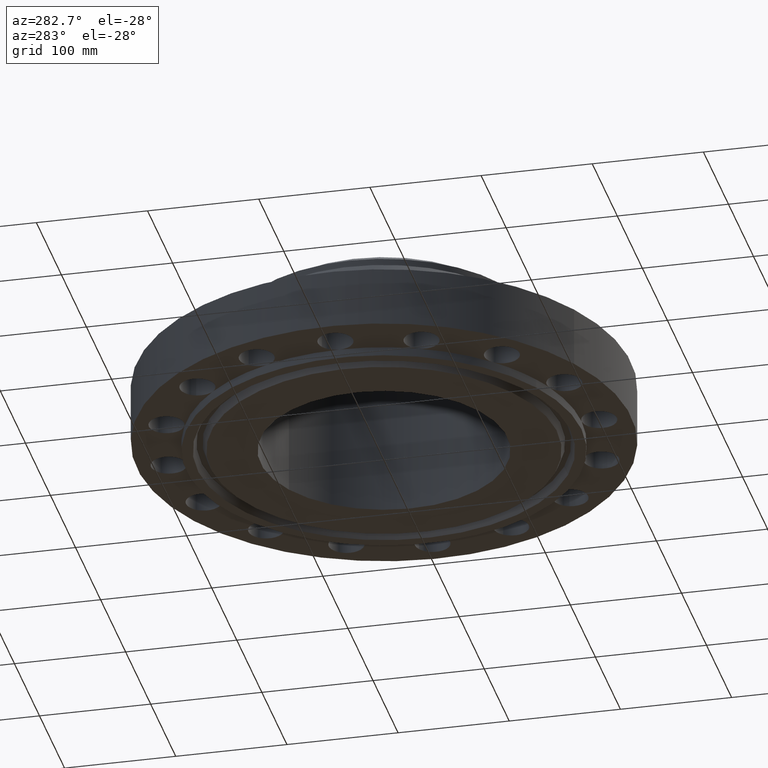
[diagram: clean part render]
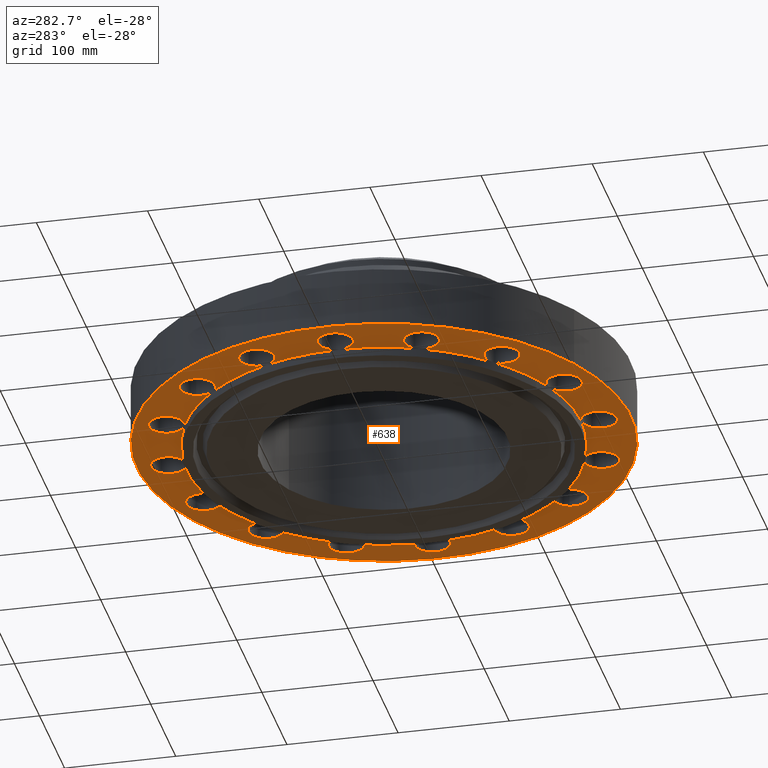
[diagram: same view with one face highlighted and labeled with its STEP entity id]
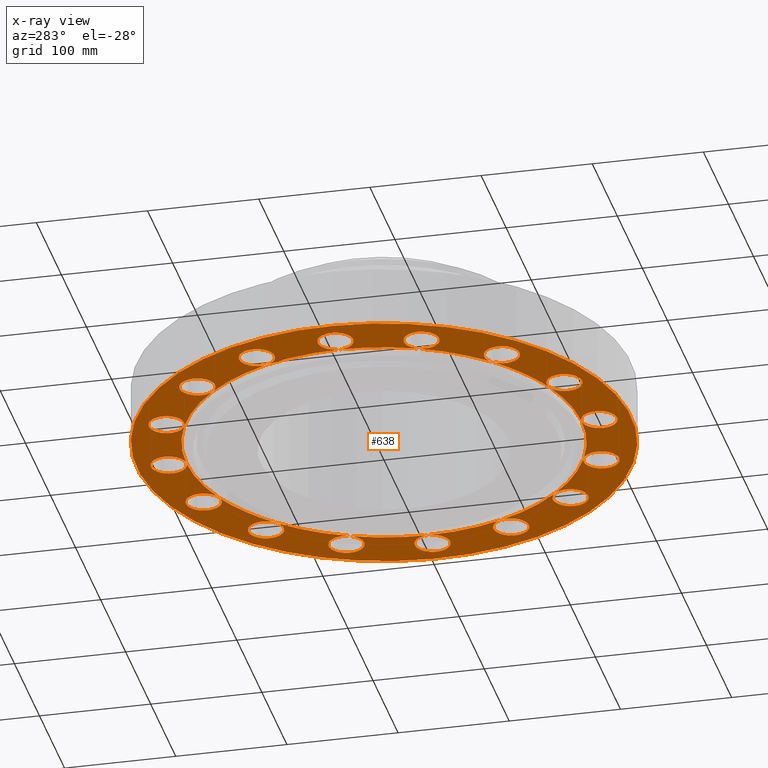
[diagram: x-ray of the same camera — body ghosted, the highlighted face saturated]
A machine part, auxiliary view. The second image highlights one B-rep face of the part: STEP entity #638.
The next image is the same camera in x-ray: the body ghosted, the highlighted face saturated — about 0% of this face is hidden behind the body in this view.
In plain terms, the highlighted planar face has unit normal (0, 0, -1).
Its self-contained STEP definition (entity closure, byte-faithful):
#51=AXIS2_PLACEMENT_3D('Circle Axis2P3D',#49,#50,$) ;
#90=AXIS2_PLACEMENT_3D('Circle Axis2P3D',#88,#89,$) ;
#141=AXIS2_PLACEMENT_3D('Plane Axis2P3D',#138,#139,#140) ;
#145=AXIS2_PLACEMENT_3D('Circle Axis2P3D',#143,#144,$) ;
#154=AXIS2_PLACEMENT_3D('Circle Axis2P3D',#152,#153,$) ;
#163=AXIS2_PLACEMENT_3D('Circle Axis2P3D',#161,#162,$) ;
#172=AXIS2_PLACEMENT_3D('Circle Axis2P3D',#170,#171,$) ;
#179=AXIS2_PLACEMENT_3D('Circle Axis2P3D',#177,#178,$) ;
#184=AXIS2_PLACEMENT_3D('Circle Axis2P3D',#182,#183,$) ;
#191=AXIS2_PLACEMENT_3D('Circle Axis2P3D',#189,#190,$) ;
#198=AXIS2_PLACEMENT_3D('Circle Axis2P3D',#196,#197,$) ;
#205=AXIS2_PLACEMENT_3D('Circle Axis2P3D',#203,#204,$) ;
#212=AXIS2_PLACEMENT_3D('Circle Axis2P3D',#210,#211,$) ;
#217=AXIS2_PLACEMENT_3D('Circle Axis2P3D',#215,#216,$) ;
#222=AXIS2_PLACEMENT_3D('Circle Axis2P3D',#220,#221,$) ;
#229=AXIS2_PLACEMENT_3D('Circle Axis2P3D',#227,#228,$) ;
#236=AXIS2_PLACEMENT_3D('Circle Axis2P3D',#234,#235,$) ;
#243=AXIS2_PLACEMENT_3D('Circle Axis2P3D',#241,#242,$) ;
#248=AXIS2_PLACEMENT_3D('Circle Axis2P3D',#246,#247,$) ;
#255=AXIS2_PLACEMENT_3D('Circle Axis2P3D',#253,#254,$) ;
#262=AXIS2_PLACEMENT_3D('Circle Axis2P3D',#260,#261,$) ;
#269=AXIS2_PLACEMENT_3D('Circle Axis2P3D',#267,#268,$) ;
#274=AXIS2_PLACEMENT_3D('Circle Axis2P3D',#272,#273,$) ;
#281=AXIS2_PLACEMENT_3D('Circle Axis2P3D',#279,#280,$) ;
#288=AXIS2_PLACEMENT_3D('Circle Axis2P3D',#286,#287,$) ;
#295=AXIS2_PLACEMENT_3D('Circle Axis2P3D',#293,#294,$) ;
#300=AXIS2_PLACEMENT_3D('Circle Axis2P3D',#298,#299,$) ;
#307=AXIS2_PLACEMENT_3D('Circle Axis2P3D',#305,#306,$) ;
#314=AXIS2_PLACEMENT_3D('Circle Axis2P3D',#312,#313,$) ;
#321=AXIS2_PLACEMENT_3D('Circle Axis2P3D',#319,#320,$) ;
#326=AXIS2_PLACEMENT_3D('Circle Axis2P3D',#324,#325,$) ;
#333=AXIS2_PLACEMENT_3D('Circle Axis2P3D',#331,#332,$) ;
#340=AXIS2_PLACEMENT_3D('Circle Axis2P3D',#338,#339,$) ;
#347=AXIS2_PLACEMENT_3D('Circle Axis2P3D',#345,#346,$) ;
#352=AXIS2_PLACEMENT_3D('Circle Axis2P3D',#350,#351,$) ;
#359=AXIS2_PLACEMENT_3D('Circle Axis2P3D',#357,#358,$) ;
#366=AXIS2_PLACEMENT_3D('Circle Axis2P3D',#364,#365,$) ;
#373=AXIS2_PLACEMENT_3D('Circle Axis2P3D',#371,#372,$) ;
#378=AXIS2_PLACEMENT_3D('Circle Axis2P3D',#376,#377,$) ;
#385=AXIS2_PLACEMENT_3D('Circle Axis2P3D',#383,#384,$) ;
#392=AXIS2_PLACEMENT_3D('Circle Axis2P3D',#390,#391,$) ;
#399=AXIS2_PLACEMENT_3D('Circle Axis2P3D',#397,#398,$) ;
#406=AXIS2_PLACEMENT_3D('Circle Axis2P3D',#404,#405,$) ;
#411=AXIS2_PLACEMENT_3D('Circle Axis2P3D',#409,#410,$) ;
#418=AXIS2_PLACEMENT_3D('Circle Axis2P3D',#416,#417,$) ;
#425=AXIS2_PLACEMENT_3D('Circle Axis2P3D',#423,#424,$) ;
#432=AXIS2_PLACEMENT_3D('Circle Axis2P3D',#430,#431,$) ;
#437=AXIS2_PLACEMENT_3D('Circle Axis2P3D',#435,#436,$) ;
#444=AXIS2_PLACEMENT_3D('Circle Axis2P3D',#442,#443,$) ;
#451=AXIS2_PLACEMENT_3D('Circle Axis2P3D',#449,#450,$) ;
#458=AXIS2_PLACEMENT_3D('Circle Axis2P3D',#456,#457,$) ;
#463=AXIS2_PLACEMENT_3D('Circle Axis2P3D',#461,#462,$) ;
#470=AXIS2_PLACEMENT_3D('Circle Axis2P3D',#468,#469,$) ;
#477=AXIS2_PLACEMENT_3D('Circle Axis2P3D',#475,#476,$) ;
#484=AXIS2_PLACEMENT_3D('Circle Axis2P3D',#482,#483,$) ;
#489=AXIS2_PLACEMENT_3D('Circle Axis2P3D',#487,#488,$) ;
#496=AXIS2_PLACEMENT_3D('Circle Axis2P3D',#494,#495,$) ;
#503=AXIS2_PLACEMENT_3D('Circle Axis2P3D',#501,#502,$) ;
#510=AXIS2_PLACEMENT_3D('Circle Axis2P3D',#508,#509,$) ;
#515=AXIS2_PLACEMENT_3D('Circle Axis2P3D',#513,#514,$) ;
#522=AXIS2_PLACEMENT_3D('Circle Axis2P3D',#520,#521,$) ;
#529=AXIS2_PLACEMENT_3D('Circle Axis2P3D',#527,#528,$) ;
#536=AXIS2_PLACEMENT_3D('Circle Axis2P3D',#534,#535,$) ;
#541=AXIS2_PLACEMENT_3D('Circle Axis2P3D',#539,#540,$) ;
#548=AXIS2_PLACEMENT_3D('Circle Axis2P3D',#546,#547,$) ;
#555=AXIS2_PLACEMENT_3D('Circle Axis2P3D',#553,#554,$) ;
#562=AXIS2_PLACEMENT_3D('Circle Axis2P3D',#560,#561,$) ;
#567=AXIS2_PLACEMENT_3D('Circle Axis2P3D',#565,#566,$) ;
#44=CARTESIAN_POINT('Vertex',(-0.548489101184,7.92464096166,1.6921547278E-011)) ;
#49=CARTESIAN_POINT('Axis2P3D Location',(0.,7.62500000003,1.6921547278E-011)) ;
#53=CARTESIAN_POINT('Vertex',(0.548489101184,7.3253590384,1.6921547278E-011)) ;
#88=CARTESIAN_POINT('Axis2P3D Location',(0.,7.62500000003,1.6921547278E-011)) ;
#92=CARTESIAN_POINT('Vertex',(-1.71542746534E-016,7.00000000003,0.)) ;
#96=CARTESIAN_POINT('Control Point',(-2.86734765415E-015,7.00000000003,1.6921547278E-011)) ;
#97=CARTESIAN_POINT('Control Point',(-0.129424770425,7.00000000003,1.52293645761E-011)) ;
#98=CARTESIAN_POINT('Control Point',(-0.258849540851,7.03350154243,1.35371818742E-011)) ;
#99=CARTESIAN_POINT('Control Point',(-0.376666681218,7.10059965544,1.18448593016E-011)) ;
#100=CARTESIAN_POINT('Control Point',(-0.566354498518,7.28904336093,8.46049389777E-012)) ;
#101=CARTESIAN_POINT('Control Point',(-0.640788224379,7.5458548066,5.07612849392E-012)) ;
#102=CARTESIAN_POINT('Control Point',(-0.643187812318,7.68141762345,3.38380592138E-012)) ;
#103=CARTESIAN_POINT('Control Point',(-0.610538641454,7.81106004006,1.69162321945E-012)) ;
#104=CARTESIAN_POINT('Control Point',(-0.548489101184,7.92464096166,-5.59482469102E-016)) ;
#138=CARTESIAN_POINT('Axis2P3D Location',(0.,7.00000000003,0.)) ;
#143=CARTESIAN_POINT('Axis2P3D Location',(-1.1189649382E-015,6.68022068108E-013,0.)) ;
#147=CARTESIAN_POINT('Vertex',(-4.1949734628,-7.67884741657,8.39223703654E-016)) ;
#149=CARTESIAN_POINT('Vertex',(4.1949734628,7.67884741657,-3.14177380524E-012)) ;
#152=CARTESIAN_POINT('Axis2P3D Location',(1.1189649382E-015,6.68022068108E-013,0.)) ;
#161=CARTESIAN_POINT('Axis2P3D Location',(5.39168920646,5.39168920634,0.)) ;
#165=CARTESIAN_POINT('Vertex',(5.56765141354,4.79197068785,0.)) ;
#167=CARTESIAN_POINT('Vertex',(4.94974746833,4.94974746833,-3.14177380524E-012)) ;
#170=CARTESIAN_POINT('Axis2P3D Location',(5.39168920658,5.39168920658,0.)) ;
#174=CARTESIAN_POINT('Vertex',(5.21572699961,5.9914077253,0.)) ;
#177=CARTESIAN_POINT('Axis2P3D Location',(5.3916892065,5.39168920657,0.)) ;
#182=CARTESIAN_POINT('Axis2P3D Location',(5.2014301877E-010,8.78804850413E-010,0.)) ;
#186=CARTESIAN_POINT('Vertex',(3.35597877024,6.14307793326,-3.14177380524E-012)) ;
#189=CARTESIAN_POINT('Axis2P3D Location',(-3.58732997813E-009,-7.85138197676E-009,0.)) ;
#193=CARTESIAN_POINT('Vertex',(2.67878402657,6.4671567276,-3.14177380524E-012)) ;
#196=CARTESIAN_POINT('Axis2P3D Location',(2.91796117176,7.04458143555,0.)) ;
#200=CARTESIAN_POINT('Vertex',(3.31003139448,6.55785159201,0.)) ;
#203=CARTESIAN_POINT('Axis2P3D Location',(2.91796117181,7.04458143543,0.)) ;
#207=CARTESIAN_POINT('Vertex',(2.52589094907,7.5313112788,0.)) ;
#210=CARTESIAN_POINT('Axis2P3D Location',(2.91796117184,7.04458143541,0.)) ;
#215=CARTESIAN_POINT('Axis2P3D Location',(2.34735205901E-010,1.32776491464E-009,0.)) ;
#220=CARTESIAN_POINT('Axis2P3D Location',(-2.34733947066E-010,1.32775820085E-009,0.)) ;
#224=CARTESIAN_POINT('Vertex',(-2.67878402657,6.4671567276,-3.14177380524E-012)) ;
#227=CARTESIAN_POINT('Axis2P3D Location',(-2.91796117172,7.04458143533,0.)) ;
#231=CARTESIAN_POINT('Vertex',(-2.29655568576,6.97764697573,0.)) ;
#234=CARTESIAN_POINT('Axis2P3D Location',(-2.91796117181,7.04458143544,0.)) ;
#238=CARTESIAN_POINT('Vertex',(-3.53936665787,7.11151589515,0.)) ;
#241=CARTESIAN_POINT('Axis2P3D Location',(-2.91796117177,7.04458143547,0.)) ;
#246=CARTESIAN_POINT('Axis2P3D Location',(-1.09747130019E-009,1.71139644888E-009,0.)) ;
#250=CARTESIAN_POINT('Vertex',(-4.94974746833,4.94974746833,-3.14177380524E-012)) ;
#253=CARTESIAN_POINT('Axis2P3D Location',(-5.39168920634,5.39168920646,0.)) ;
#257=CARTESIAN_POINT('Vertex',(-4.79197068785,5.56765141354,0.)) ;
#260=CARTESIAN_POINT('Axis2P3D Location',(-5.39168920658,5.39168920658,0.)) ;
#264=CARTESIAN_POINT('Vertex',(-5.9914077253,5.21572699961,0.)) ;
#267=CARTESIAN_POINT('Axis2P3D Location',(-5.39168920656,5.3916892065,0.)) ;
#272=CARTESIAN_POINT('Axis2P3D Location',(-1.71072171302E-009,1.09813540588E-009,0.)) ;
#276=CARTESIAN_POINT('Vertex',(-6.4671567276,2.67878402657,-3.14177380524E-012)) ;
#279=CARTESIAN_POINT('Axis2P3D Location',(-7.04458143555,2.91796117176,0.)) ;
#283=CARTESIAN_POINT('Vertex',(-6.55785159201,3.31003139448,0.)) ;
#286=CARTESIAN_POINT('Axis2P3D Location',(-7.04458143543,2.91796117181,0.)) ;
#290=CARTESIAN_POINT('Vertex',(-7.5313112788,2.52589094907,0.)) ;
#293=CARTESIAN_POINT('Axis2P3D Location',(-7.04458143541,2.91796117184,0.)) ;
#298=CARTESIAN_POINT('Axis2P3D Location',(-1.32709689257E-009,2.3540336784E-010,0.)) ;
#302=CARTESIAN_POINT('Vertex',(-7.00000000003,-2.23792987641E-014,-3.14177380524E-012)) ;
#305=CARTESIAN_POINT('Axis2P3D Location',(-7.62499999973,1.82601650336E-010,0.)) ;
#309=CARTESIAN_POINT('Vertex',(-7.32535903841,0.548489101188,0.)) ;
#312=CARTESIAN_POINT('Axis2P3D Location',(-7.62500000003,6.68022068108E-013,0.)) ;
#316=CARTESIAN_POINT('Vertex',(-7.92464096165,-0.548489101186,0.)) ;
#319=CARTESIAN_POINT('Axis2P3D Location',(-7.62499999998,-8.67063551316E-011,0.)) ;
#324=CARTESIAN_POINT('Axis2P3D Location',(-1.32709017878E-009,-2.34066204739E-010,0.)) ;
#328=CARTESIAN_POINT('Vertex',(-6.4671567276,-2.67878402657,-3.14177380524E-012)) ;
#331=CARTESIAN_POINT('Axis2P3D Location',(-7.04458143533,-2.91796117172,0.)) ;
#335=CARTESIAN_POINT('Vertex',(-6.97764697573,-2.29655568576,0.)) ;
#338=CARTESIAN_POINT('Axis2P3D Location',(-7.04458143544,-2.91796117181,0.)) ;
#342=CARTESIAN_POINT('Vertex',(-7.11151589515,-3.53936665787,0.)) ;
#345=CARTESIAN_POINT('Axis2P3D Location',(-7.04458143547,-2.91796117177,0.)) ;
#350=CARTESIAN_POINT('Axis2P3D Location',(-1.71072842681E-009,-1.0968038376E-009,0.)) ;
#354=CARTESIAN_POINT('Vertex',(-4.94974746831,-4.94974746831,0.)) ;
#357=CARTESIAN_POINT('Axis2P3D Location',(-5.39168920646,-5.39168920634,0.)) ;
#361=CARTESIAN_POINT('Vertex',(-5.56765141354,-4.79197068785,0.)) ;
#364=CARTESIAN_POINT('Axis2P3D Location',(-5.39168920658,-5.39168920658,0.)) ;
#368=CARTESIAN_POINT('Vertex',(-5.21572699961,-5.9914077253,0.)) ;
#371=CARTESIAN_POINT('Axis2P3D Location',(-5.3916892065,-5.39168920656,0.)) ;
#376=CARTESIAN_POINT('Axis2P3D Location',(-5.2014301877E-010,-8.77468806277E-010,0.)) ;
#380=CARTESIAN_POINT('Vertex',(-3.35597877025,-6.14307793326,-3.14177380524E-012)) ;
#383=CARTESIAN_POINT('Axis2P3D Location',(3.58732997813E-009,7.8527180209E-009,0.)) ;
#387=CARTESIAN_POINT('Vertex',(-2.67878402657,-6.4671567276,-3.14177380524E-012)) ;
#390=CARTESIAN_POINT('Axis2P3D Location',(-2.91796117176,-7.04458143555,0.)) ;
#394=CARTESIAN_POINT('Vertex',(-3.31003139448,-6.557851592,0.)) ;
#397=CARTESIAN_POINT('Axis2P3D Location',(-2.91796117181,-7.04458143543,0.)) ;
#401=CARTESIAN_POINT('Vertex',(-2.52589094907,-7.5313112788,0.)) ;
#404=CARTESIAN_POINT('Axis2P3D Location',(-2.91796117184,-7.04458143541,0.)) ;
#409=CARTESIAN_POINT('Axis2P3D Location',(-2.34735205901E-010,-1.3264288705E-009,0.)) ;
#413=CARTESIAN_POINT('Vertex',(2.01413688877E-014,-7.00000000003,-3.14177380524E-012)) ;
#416=CARTESIAN_POINT('Axis2P3D Location',(4.80151351749E-011,-7.62500000011,0.)) ;
#420=CARTESIAN_POINT('Vertex',(-0.548489101187,-7.32535903841,0.)) ;
#423=CARTESIAN_POINT('Axis2P3D Location',(-1.74838271595E-017,-7.62500000003,0.)) ;
#427=CARTESIAN_POINT('Vertex',(0.548489101187,-7.92464096165,0.)) ;
#430=CARTESIAN_POINT('Axis2P3D Location',(8.73747618439E-011,-7.62499999998,0.)) ;
#435=CARTESIAN_POINT('Axis2P3D Location',(2.34733947066E-010,-1.32642215671E-009,0.)) ;
#439=CARTESIAN_POINT('Vertex',(2.67878402657,-6.4671567276,-3.14177380524E-012)) ;
#442=CARTESIAN_POINT('Axis2P3D Location',(2.91796117172,-7.04458143533,0.)) ;
#446=CARTESIAN_POINT('Vertex',(2.29655568576,-6.97764697573,0.)) ;
#449=CARTESIAN_POINT('Axis2P3D Location',(2.91796117181,-7.04458143544,0.)) ;
#453=CARTESIAN_POINT('Vertex',(3.53936665787,-7.11151589515,0.)) ;
#456=CARTESIAN_POINT('Axis2P3D Location',(2.91796117177,-7.04458143546,0.)) ;
#461=CARTESIAN_POINT('Axis2P3D Location',(1.09747130019E-009,-1.71006040474E-009,0.)) ;
#465=CARTESIAN_POINT('Vertex',(4.94974746833,-4.94974746833,-3.14177380524E-012)) ;
#468=CARTESIAN_POINT('Axis2P3D Location',(5.39168920634,-5.39168920646,0.)) ;
#472=CARTESIAN_POINT('Vertex',(4.79197068785,-5.56765141354,0.)) ;
#475=CARTESIAN_POINT('Axis2P3D Location',(5.39168920658,-5.39168920658,0.)) ;
#479=CARTESIAN_POINT('Vertex',(5.9914077253,-5.21572699961,0.)) ;
#482=CARTESIAN_POINT('Axis2P3D Location',(5.39168920656,-5.3916892065,0.)) ;
#487=CARTESIAN_POINT('Axis2P3D Location',(1.71072171302E-009,-1.09679936174E-009,0.)) ;
#491=CARTESIAN_POINT('Vertex',(6.4671567276,-2.67878402657,-3.14177380524E-012)) ;
#494=CARTESIAN_POINT('Axis2P3D Location',(7.04458143555,-2.91796117176,0.)) ;
#498=CARTESIAN_POINT('Vertex',(6.55785159201,-3.31003139448,0.)) ;
#501=CARTESIAN_POINT('Axis2P3D Location',(7.04458143543,-2.91796117181,0.)) ;
#505=CARTESIAN_POINT('Vertex',(7.5313112788,-2.52589094907,0.)) ;
#508=CARTESIAN_POINT('Axis2P3D Location',(7.04458143541,-2.91796117184,0.)) ;
#513=CARTESIAN_POINT('Axis2P3D Location',(1.32709689257E-009,-2.34067323704E-010,0.)) ;
#517=CARTESIAN_POINT('Vertex',(7.00000000003,1.95818864186E-014,-3.14177380524E-012)) ;
#520=CARTESIAN_POINT('Axis2P3D Location',(7.62499999973,-1.812656062E-010,0.)) ;
#524=CARTESIAN_POINT('Vertex',(7.32535903841,-0.548489101186,0.)) ;
#527=CARTESIAN_POINT('Axis2P3D Location',(7.62500000003,6.68022068108E-013,0.)) ;
#531=CARTESIAN_POINT('Vertex',(7.92464096165,0.548489101188,0.)) ;
#534=CARTESIAN_POINT('Axis2P3D Location',(7.62499999998,8.80423992678E-011,0.)) ;
#539=CARTESIAN_POINT('Axis2P3D Location',(1.32709017878E-009,2.35402248875E-010,0.)) ;
#543=CARTESIAN_POINT('Vertex',(6.4671567276,2.67878402657,-3.14177380524E-012)) ;
#546=CARTESIAN_POINT('Axis2P3D Location',(7.04458143533,2.91796117172,0.)) ;
#550=CARTESIAN_POINT('Vertex',(6.97764697573,2.29655568576,0.)) ;
#553=CARTESIAN_POINT('Axis2P3D Location',(7.04458143544,2.91796117181,0.)) ;
#557=CARTESIAN_POINT('Vertex',(7.11151589515,3.53936665787,0.)) ;
#560=CARTESIAN_POINT('Axis2P3D Location',(7.04458143547,2.91796117177,0.)) ;
#565=CARTESIAN_POINT('Axis2P3D Location',(1.71072842681E-009,1.09813988174E-009,0.)) ;
#50=DIRECTION('Axis2P3D Direction',(0.,-0.,-0.0393700787402)) ;
#89=DIRECTION('Axis2P3D Direction',(0.,-0.,-0.0393700787402)) ;
#139=DIRECTION('Axis2P3D Direction',(0.,0.,-0.0393700787402)) ;
#140=DIRECTION('Axis2P3D XDirection',(0.0393700787402,0.,0.)) ;
#144=DIRECTION('Axis2P3D Direction',(0.,0.,-0.0393700787402)) ;
#153=DIRECTION('Axis2P3D Direction',(0.,0.,-0.0393700787402)) ;
#162=DIRECTION('Axis2P3D Direction',(0.,0.,-0.0393700787402)) ;
#171=DIRECTION('Axis2P3D Direction',(0.,0.,-0.0393700787402)) ;
#178=DIRECTION('Axis2P3D Direction',(0.,0.,-0.0393700787402)) ;
#183=DIRECTION('Axis2P3D Direction',(0.,0.,-0.0393700787402)) ;
#190=DIRECTION('Axis2P3D Direction',(0.,0.,-0.0393700787402)) ;
#197=DIRECTION('Axis2P3D Direction',(0.,0.,-0.0393700787402)) ;
#204=DIRECTION('Axis2P3D Direction',(0.,0.,-0.0393700787402)) ;
#211=DIRECTION('Axis2P3D Direction',(0.,0.,-0.0393700787402)) ;
#216=DIRECTION('Axis2P3D Direction',(0.,0.,-0.0393700787402)) ;
#221=DIRECTION('Axis2P3D Direction',(0.,0.,-0.0393700787402)) ;
#228=DIRECTION('Axis2P3D Direction',(0.,0.,-0.0393700787402)) ;
#235=DIRECTION('Axis2P3D Direction',(0.,0.,-0.0393700787402)) ;
#242=DIRECTION('Axis2P3D Direction',(0.,0.,-0.0393700787402)) ;
#247=DIRECTION('Axis2P3D Direction',(0.,0.,-0.0393700787402)) ;
#254=DIRECTION('Axis2P3D Direction',(0.,0.,-0.0393700787402)) ;
#261=DIRECTION('Axis2P3D Direction',(0.,0.,-0.0393700787402)) ;
#268=DIRECTION('Axis2P3D Direction',(0.,0.,-0.0393700787402)) ;
#273=DIRECTION('Axis2P3D Direction',(0.,0.,-0.0393700787402)) ;
#280=DIRECTION('Axis2P3D Direction',(0.,0.,-0.0393700787402)) ;
#287=DIRECTION('Axis2P3D Direction',(0.,0.,-0.0393700787402)) ;
#294=DIRECTION('Axis2P3D Direction',(0.,0.,-0.0393700787402)) ;
#299=DIRECTION('Axis2P3D Direction',(0.,0.,-0.0393700787402)) ;
#306=DIRECTION('Axis2P3D Direction',(0.,0.,-0.0393700787402)) ;
#313=DIRECTION('Axis2P3D Direction',(0.,0.,-0.0393700787402)) ;
#320=DIRECTION('Axis2P3D Direction',(0.,0.,-0.0393700787402)) ;
#325=DIRECTION('Axis2P3D Direction',(0.,0.,-0.0393700787402)) ;
#332=DIRECTION('Axis2P3D Direction',(0.,0.,-0.0393700787402)) ;
#339=DIRECTION('Axis2P3D Direction',(0.,0.,-0.0393700787402)) ;
#346=DIRECTION('Axis2P3D Direction',(0.,0.,-0.0393700787402)) ;
#351=DIRECTION('Axis2P3D Direction',(0.,0.,-0.0393700787402)) ;
#358=DIRECTION('Axis2P3D Direction',(0.,0.,-0.0393700787402)) ;
#365=DIRECTION('Axis2P3D Direction',(0.,0.,-0.0393700787402)) ;
#372=DIRECTION('Axis2P3D Direction',(0.,0.,-0.0393700787402)) ;
#377=DIRECTION('Axis2P3D Direction',(0.,0.,-0.0393700787402)) ;
#384=DIRECTION('Axis2P3D Direction',(0.,0.,-0.0393700787402)) ;
#391=DIRECTION('Axis2P3D Direction',(0.,0.,-0.0393700787402)) ;
#398=DIRECTION('Axis2P3D Direction',(0.,0.,-0.0393700787402)) ;
#405=DIRECTION('Axis2P3D Direction',(0.,0.,-0.0393700787402)) ;
#410=DIRECTION('Axis2P3D Direction',(0.,0.,-0.0393700787402)) ;
#417=DIRECTION('Axis2P3D Direction',(0.,0.,-0.0393700787402)) ;
#424=DIRECTION('Axis2P3D Direction',(0.,0.,-0.0393700787402)) ;
#431=DIRECTION('Axis2P3D Direction',(0.,0.,-0.0393700787402)) ;
#436=DIRECTION('Axis2P3D Direction',(0.,0.,-0.0393700787402)) ;
#443=DIRECTION('Axis2P3D Direction',(0.,0.,-0.0393700787402)) ;
#450=DIRECTION('Axis2P3D Direction',(0.,0.,-0.0393700787402)) ;
#457=DIRECTION('Axis2P3D Direction',(0.,0.,-0.0393700787402)) ;
#462=DIRECTION('Axis2P3D Direction',(0.,0.,-0.0393700787402)) ;
#469=DIRECTION('Axis2P3D Direction',(0.,0.,-0.0393700787402)) ;
#476=DIRECTION('Axis2P3D Direction',(0.,0.,-0.0393700787402)) ;
#483=DIRECTION('Axis2P3D Direction',(0.,0.,-0.0393700787402)) ;
#488=DIRECTION('Axis2P3D Direction',(0.,0.,-0.0393700787402)) ;
#495=DIRECTION('Axis2P3D Direction',(0.,0.,-0.0393700787402)) ;
#502=DIRECTION('Axis2P3D Direction',(0.,0.,-0.0393700787402)) ;
#509=DIRECTION('Axis2P3D Direction',(0.,0.,-0.0393700787402)) ;
#514=DIRECTION('Axis2P3D Direction',(0.,0.,-0.0393700787402)) ;
#521=DIRECTION('Axis2P3D Direction',(0.,0.,-0.0393700787402)) ;
#528=DIRECTION('Axis2P3D Direction',(0.,0.,-0.0393700787402)) ;
#535=DIRECTION('Axis2P3D Direction',(0.,0.,-0.0393700787402)) ;
#540=DIRECTION('Axis2P3D Direction',(0.,0.,-0.0393700787402)) ;
#547=DIRECTION('Axis2P3D Direction',(0.,0.,-0.0393700787402)) ;
#554=DIRECTION('Axis2P3D Direction',(0.,0.,-0.0393700787402)) ;
#561=DIRECTION('Axis2P3D Direction',(0.,0.,-0.0393700787402)) ;
#566=DIRECTION('Axis2P3D Direction',(0.,0.,-0.0393700787402)) ;
#158=ORIENTED_EDGE('',*,*,#151,.T.) ;
#159=ORIENTED_EDGE('',*,*,#156,.T.) ;
#571=ORIENTED_EDGE('',*,*,#169,.F.) ;
#572=ORIENTED_EDGE('',*,*,#176,.F.) ;
#573=ORIENTED_EDGE('',*,*,#181,.F.) ;
#574=ORIENTED_EDGE('',*,*,#188,.F.) ;
#575=ORIENTED_EDGE('',*,*,#195,.F.) ;
#576=ORIENTED_EDGE('',*,*,#202,.F.) ;
#577=ORIENTED_EDGE('',*,*,#209,.F.) ;
#578=ORIENTED_EDGE('',*,*,#214,.F.) ;
#579=ORIENTED_EDGE('',*,*,#219,.F.) ;
#580=ORIENTED_EDGE('',*,*,#94,.F.) ;
#581=ORIENTED_EDGE('',*,*,#55,.F.) ;
#582=ORIENTED_EDGE('',*,*,#105,.F.) ;
#583=ORIENTED_EDGE('',*,*,#226,.F.) ;
#584=ORIENTED_EDGE('',*,*,#233,.F.) ;
#585=ORIENTED_EDGE('',*,*,#240,.F.) ;
#586=ORIENTED_EDGE('',*,*,#245,.F.) ;
#587=ORIENTED_EDGE('',*,*,#252,.F.) ;
#588=ORIENTED_EDGE('',*,*,#259,.F.) ;
#589=ORIENTED_EDGE('',*,*,#266,.F.) ;
#590=ORIENTED_EDGE('',*,*,#271,.F.) ;
#591=ORIENTED_EDGE('',*,*,#278,.F.) ;
#592=ORIENTED_EDGE('',*,*,#285,.F.) ;
#593=ORIENTED_EDGE('',*,*,#292,.F.) ;
#594=ORIENTED_EDGE('',*,*,#297,.F.) ;
#595=ORIENTED_EDGE('',*,*,#304,.F.) ;
#596=ORIENTED_EDGE('',*,*,#311,.F.) ;
#597=ORIENTED_EDGE('',*,*,#318,.F.) ;
#598=ORIENTED_EDGE('',*,*,#323,.F.) ;
#599=ORIENTED_EDGE('',*,*,#330,.F.) ;
#600=ORIENTED_EDGE('',*,*,#337,.F.) ;
#601=ORIENTED_EDGE('',*,*,#344,.F.) ;
#602=ORIENTED_EDGE('',*,*,#349,.F.) ;
#603=ORIENTED_EDGE('',*,*,#356,.F.) ;
#604=ORIENTED_EDGE('',*,*,#363,.F.) ;
#605=ORIENTED_EDGE('',*,*,#370,.F.) ;
#606=ORIENTED_EDGE('',*,*,#375,.F.) ;
#607=ORIENTED_EDGE('',*,*,#382,.F.) ;
#608=ORIENTED_EDGE('',*,*,#389,.F.) ;
#609=ORIENTED_EDGE('',*,*,#396,.F.) ;
#610=ORIENTED_EDGE('',*,*,#403,.F.) ;
#611=ORIENTED_EDGE('',*,*,#408,.F.) ;
#612=ORIENTED_EDGE('',*,*,#415,.F.) ;
#613=ORIENTED_EDGE('',*,*,#422,.F.) ;
#614=ORIENTED_EDGE('',*,*,#429,.F.) ;
#615=ORIENTED_EDGE('',*,*,#434,.F.) ;
#616=ORIENTED_EDGE('',*,*,#441,.F.) ;
#617=ORIENTED_EDGE('',*,*,#448,.F.) ;
#618=ORIENTED_EDGE('',*,*,#455,.F.) ;
#619=ORIENTED_EDGE('',*,*,#460,.F.) ;
#620=ORIENTED_EDGE('',*,*,#467,.F.) ;
#621=ORIENTED_EDGE('',*,*,#474,.F.) ;
#622=ORIENTED_EDGE('',*,*,#481,.F.) ;
#623=ORIENTED_EDGE('',*,*,#486,.F.) ;
#624=ORIENTED_EDGE('',*,*,#493,.F.) ;
#625=ORIENTED_EDGE('',*,*,#500,.F.) ;
#626=ORIENTED_EDGE('',*,*,#507,.F.) ;
#627=ORIENTED_EDGE('',*,*,#512,.F.) ;
#628=ORIENTED_EDGE('',*,*,#519,.F.) ;
#629=ORIENTED_EDGE('',*,*,#526,.F.) ;
#630=ORIENTED_EDGE('',*,*,#533,.F.) ;
#631=ORIENTED_EDGE('',*,*,#538,.F.) ;
#632=ORIENTED_EDGE('',*,*,#545,.F.) ;
#633=ORIENTED_EDGE('',*,*,#552,.F.) ;
#634=ORIENTED_EDGE('',*,*,#559,.F.) ;
#635=ORIENTED_EDGE('',*,*,#564,.F.) ;
#636=ORIENTED_EDGE('',*,*,#569,.F.) ;
#637=FACE_BOUND('',#570,.T.) ;
#638=ADVANCED_FACE('PartBody',(#160,#637),#142,.T.) ;
#95=B_SPLINE_CURVE_WITH_KNOTS('',5,(#96,#97,#98,#99,#100,#101,#102,#103,#104),.UNSPECIFIED.,.F.,.U.,(6,3,6),(-16.436945844,0.,16.436945844),.UNSPECIFIED.) ;
#52=CIRCLE('generated circle',#51,0.625000000003) ;
#91=CIRCLE('generated circle',#90,0.625000000003) ;
#146=CIRCLE('generated circle',#145,8.75) ;
#155=CIRCLE('generated circle',#154,8.75) ;
#164=CIRCLE('generated circle',#163,0.624999999792) ;
#173=CIRCLE('generated circle',#172,0.624999999985) ;
#180=CIRCLE('generated circle',#179,0.624999999974) ;
#185=CIRCLE('generated circle',#184,6.99999999901) ;
#192=CIRCLE('generated circle',#191,7.00000000865) ;
#199=CIRCLE('generated circle',#198,0.625000000114) ;
#206=CIRCLE('generated circle',#205,0.624999999987) ;
#213=CIRCLE('generated circle',#212,0.625000000017) ;
#218=CIRCLE('generated circle',#217,6.9999999987) ;
#223=CIRCLE('generated circle',#222,6.9999999987) ;
#230=CIRCLE('generated circle',#229,0.62499999989) ;
#237=CIRCLE('generated circle',#236,0.624999999996) ;
#244=CIRCLE('generated circle',#243,0.625000000038) ;
#249=CIRCLE('generated circle',#248,6.99999999802) ;
#256=CIRCLE('generated circle',#255,0.624999999792) ;
#263=CIRCLE('generated circle',#262,0.624999999985) ;
#270=CIRCLE('generated circle',#269,0.624999999974) ;
#275=CIRCLE('generated circle',#274,6.99999999802) ;
#282=CIRCLE('generated circle',#281,0.625000000114) ;
#289=CIRCLE('generated circle',#288,0.624999999987) ;
#296=CIRCLE('generated circle',#295,0.625000000017) ;
#301=CIRCLE('generated circle',#300,6.9999999987) ;
#308=CIRCLE('generated circle',#307,0.624999999698) ;
#315=CIRCLE('generated circle',#314,0.625000000002) ;
#322=CIRCLE('generated circle',#321,0.62499999995) ;
#327=CIRCLE('generated circle',#326,6.9999999987) ;
#334=CIRCLE('generated circle',#333,0.62499999989) ;
#341=CIRCLE('generated circle',#340,0.624999999996) ;
#348=CIRCLE('generated circle',#347,0.625000000038) ;
#353=CIRCLE('generated circle',#352,6.99999999802) ;
#360=CIRCLE('generated circle',#359,0.624999999792) ;
#367=CIRCLE('generated circle',#366,0.624999999985) ;
#374=CIRCLE('generated circle',#373,0.624999999974) ;
#379=CIRCLE('generated circle',#378,6.99999999901) ;
#386=CIRCLE('generated circle',#385,7.00000000865) ;
#393=CIRCLE('generated circle',#392,0.625000000114) ;
#400=CIRCLE('generated circle',#399,0.624999999987) ;
#407=CIRCLE('generated circle',#406,0.625000000017) ;
#412=CIRCLE('generated circle',#411,6.9999999987) ;
#419=CIRCLE('generated circle',#418,0.625000000085) ;
#426=CIRCLE('generated circle',#425,0.625000000002) ;
#433=CIRCLE('generated circle',#432,0.62499999995) ;
#438=CIRCLE('generated circle',#437,6.9999999987) ;
#445=CIRCLE('generated circle',#444,0.62499999989) ;
#452=CIRCLE('generated circle',#451,0.624999999996) ;
#459=CIRCLE('generated circle',#458,0.625000000038) ;
#464=CIRCLE('generated circle',#463,6.99999999802) ;
#471=CIRCLE('generated circle',#470,0.624999999792) ;
#478=CIRCLE('generated circle',#477,0.624999999985) ;
#485=CIRCLE('generated circle',#484,0.624999999974) ;
#490=CIRCLE('generated circle',#489,6.99999999802) ;
#497=CIRCLE('generated circle',#496,0.625000000114) ;
#504=CIRCLE('generated circle',#503,0.624999999987) ;
#511=CIRCLE('generated circle',#510,0.625000000017) ;
#516=CIRCLE('generated circle',#515,6.9999999987) ;
#523=CIRCLE('generated circle',#522,0.624999999698) ;
#530=CIRCLE('generated circle',#529,0.625000000002) ;
#537=CIRCLE('generated circle',#536,0.62499999995) ;
#542=CIRCLE('generated circle',#541,6.9999999987) ;
#549=CIRCLE('generated circle',#548,0.62499999989) ;
#556=CIRCLE('generated circle',#555,0.624999999996) ;
#563=CIRCLE('generated circle',#562,0.625000000038) ;
#568=CIRCLE('generated circle',#567,6.99999999802) ;
#55=EDGE_CURVE('',#45,#54,#52,.T.) ;
#94=EDGE_CURVE('',#54,#93,#91,.T.) ;
#105=EDGE_CURVE('',#93,#45,#95,.T.) ;
#151=EDGE_CURVE('',#148,#150,#146,.T.) ;
#156=EDGE_CURVE('',#150,#148,#155,.T.) ;
#169=EDGE_CURVE('',#166,#168,#164,.T.) ;
#176=EDGE_CURVE('',#175,#166,#173,.T.) ;
#181=EDGE_CURVE('',#168,#175,#180,.T.) ;
#188=EDGE_CURVE('',#187,#168,#185,.T.) ;
#195=EDGE_CURVE('',#194,#187,#192,.T.) ;
#202=EDGE_CURVE('',#201,#194,#199,.T.) ;
#209=EDGE_CURVE('',#208,#201,#206,.T.) ;
#214=EDGE_CURVE('',#194,#208,#213,.T.) ;
#219=EDGE_CURVE('',#93,#194,#218,.T.) ;
#226=EDGE_CURVE('',#225,#93,#223,.T.) ;
#233=EDGE_CURVE('',#232,#225,#230,.T.) ;
#240=EDGE_CURVE('',#239,#232,#237,.T.) ;
#245=EDGE_CURVE('',#225,#239,#244,.T.) ;
#252=EDGE_CURVE('',#251,#225,#249,.T.) ;
#259=EDGE_CURVE('',#258,#251,#256,.T.) ;
#266=EDGE_CURVE('',#265,#258,#263,.T.) ;
#271=EDGE_CURVE('',#251,#265,#270,.T.) ;
#278=EDGE_CURVE('',#277,#251,#275,.T.) ;
#285=EDGE_CURVE('',#284,#277,#282,.T.) ;
#292=EDGE_CURVE('',#291,#284,#289,.T.) ;
#297=EDGE_CURVE('',#277,#291,#296,.T.) ;
#304=EDGE_CURVE('',#303,#277,#301,.T.) ;
#311=EDGE_CURVE('',#310,#303,#308,.T.) ;
#318=EDGE_CURVE('',#317,#310,#315,.T.) ;
#323=EDGE_CURVE('',#303,#317,#322,.T.) ;
#330=EDGE_CURVE('',#329,#303,#327,.T.) ;
#337=EDGE_CURVE('',#336,#329,#334,.T.) ;
#344=EDGE_CURVE('',#343,#336,#341,.T.) ;
#349=EDGE_CURVE('',#329,#343,#348,.T.) ;
#356=EDGE_CURVE('',#355,#329,#353,.T.) ;
#363=EDGE_CURVE('',#362,#355,#360,.T.) ;
#370=EDGE_CURVE('',#369,#362,#367,.T.) ;
#375=EDGE_CURVE('',#355,#369,#374,.T.) ;
#382=EDGE_CURVE('',#381,#355,#379,.T.) ;
#389=EDGE_CURVE('',#388,#381,#386,.T.) ;
#396=EDGE_CURVE('',#395,#388,#393,.T.) ;
#403=EDGE_CURVE('',#402,#395,#400,.T.) ;
#408=EDGE_CURVE('',#388,#402,#407,.T.) ;
#415=EDGE_CURVE('',#414,#388,#412,.T.) ;
#422=EDGE_CURVE('',#421,#414,#419,.T.) ;
#429=EDGE_CURVE('',#428,#421,#426,.T.) ;
#434=EDGE_CURVE('',#414,#428,#433,.T.) ;
#441=EDGE_CURVE('',#440,#414,#438,.T.) ;
#448=EDGE_CURVE('',#447,#440,#445,.T.) ;
#455=EDGE_CURVE('',#454,#447,#452,.T.) ;
#460=EDGE_CURVE('',#440,#454,#459,.T.) ;
#467=EDGE_CURVE('',#466,#440,#464,.T.) ;
#474=EDGE_CURVE('',#473,#466,#471,.T.) ;
#481=EDGE_CURVE('',#480,#473,#478,.T.) ;
#486=EDGE_CURVE('',#466,#480,#485,.T.) ;
#493=EDGE_CURVE('',#492,#466,#490,.T.) ;
#500=EDGE_CURVE('',#499,#492,#497,.T.) ;
#507=EDGE_CURVE('',#506,#499,#504,.T.) ;
#512=EDGE_CURVE('',#492,#506,#511,.T.) ;
#519=EDGE_CURVE('',#518,#492,#516,.T.) ;
#526=EDGE_CURVE('',#525,#518,#523,.T.) ;
#533=EDGE_CURVE('',#532,#525,#530,.T.) ;
#538=EDGE_CURVE('',#518,#532,#537,.T.) ;
#545=EDGE_CURVE('',#544,#518,#542,.T.) ;
#552=EDGE_CURVE('',#551,#544,#549,.T.) ;
#559=EDGE_CURVE('',#558,#551,#556,.T.) ;
#564=EDGE_CURVE('',#544,#558,#563,.T.) ;
#569=EDGE_CURVE('',#168,#544,#568,.T.) ;
#157=EDGE_LOOP('',(#158,#159)) ;
#570=EDGE_LOOP('',(#571,#572,#573,#574,#575,#576,#577,#578,#579,#580,#581,#582,#583,#584,#585,#586,#587,#588,#589,#590,#591,#592,#593,#594,#595,#596,#597,#598,#599,#600,#601,#602,#603,#604,#605,#606,#607,#608,#609,#610,#611,#612,#613,#614,#615,#616,#617,#618,#619,#620,#621,#622,#623,#624,#625,#626,#627,#628,#629,#630,#631,#632,#633,#634,#635,#636)) ;
#160=FACE_OUTER_BOUND('',#157,.T.) ;
#142=PLANE('',#141) ;
#45=VERTEX_POINT('',#44) ;
#54=VERTEX_POINT('',#53) ;
#93=VERTEX_POINT('',#92) ;
#148=VERTEX_POINT('',#147) ;
#150=VERTEX_POINT('',#149) ;
#166=VERTEX_POINT('',#165) ;
#168=VERTEX_POINT('',#167) ;
#175=VERTEX_POINT('',#174) ;
#187=VERTEX_POINT('',#186) ;
#194=VERTEX_POINT('',#193) ;
#201=VERTEX_POINT('',#200) ;
#208=VERTEX_POINT('',#207) ;
#225=VERTEX_POINT('',#224) ;
#232=VERTEX_POINT('',#231) ;
#239=VERTEX_POINT('',#238) ;
#251=VERTEX_POINT('',#250) ;
#258=VERTEX_POINT('',#257) ;
#265=VERTEX_POINT('',#264) ;
#277=VERTEX_POINT('',#276) ;
#284=VERTEX_POINT('',#283) ;
#291=VERTEX_POINT('',#290) ;
#303=VERTEX_POINT('',#302) ;
#310=VERTEX_POINT('',#309) ;
#317=VERTEX_POINT('',#316) ;
#329=VERTEX_POINT('',#328) ;
#336=VERTEX_POINT('',#335) ;
#343=VERTEX_POINT('',#342) ;
#355=VERTEX_POINT('',#354) ;
#362=VERTEX_POINT('',#361) ;
#369=VERTEX_POINT('',#368) ;
#381=VERTEX_POINT('',#380) ;
#388=VERTEX_POINT('',#387) ;
#395=VERTEX_POINT('',#394) ;
#402=VERTEX_POINT('',#401) ;
#414=VERTEX_POINT('',#413) ;
#421=VERTEX_POINT('',#420) ;
#428=VERTEX_POINT('',#427) ;
#440=VERTEX_POINT('',#439) ;
#447=VERTEX_POINT('',#446) ;
#454=VERTEX_POINT('',#453) ;
#466=VERTEX_POINT('',#465) ;
#473=VERTEX_POINT('',#472) ;
#480=VERTEX_POINT('',#479) ;
#492=VERTEX_POINT('',#491) ;
#499=VERTEX_POINT('',#498) ;
#506=VERTEX_POINT('',#505) ;
#518=VERTEX_POINT('',#517) ;
#525=VERTEX_POINT('',#524) ;
#532=VERTEX_POINT('',#531) ;
#544=VERTEX_POINT('',#543) ;
#551=VERTEX_POINT('',#550) ;
#558=VERTEX_POINT('',#557) ;